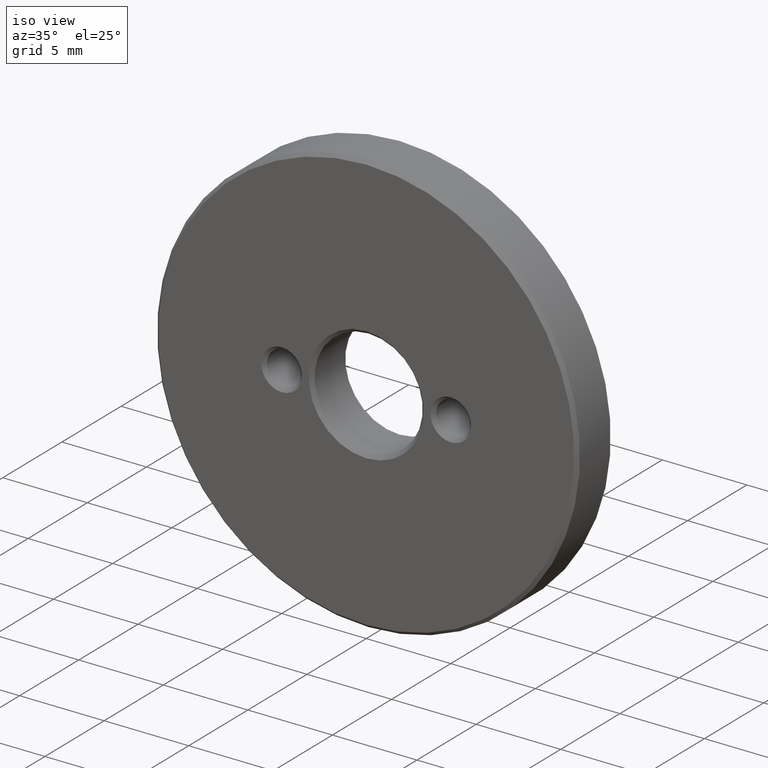
[diagram: clean part render]
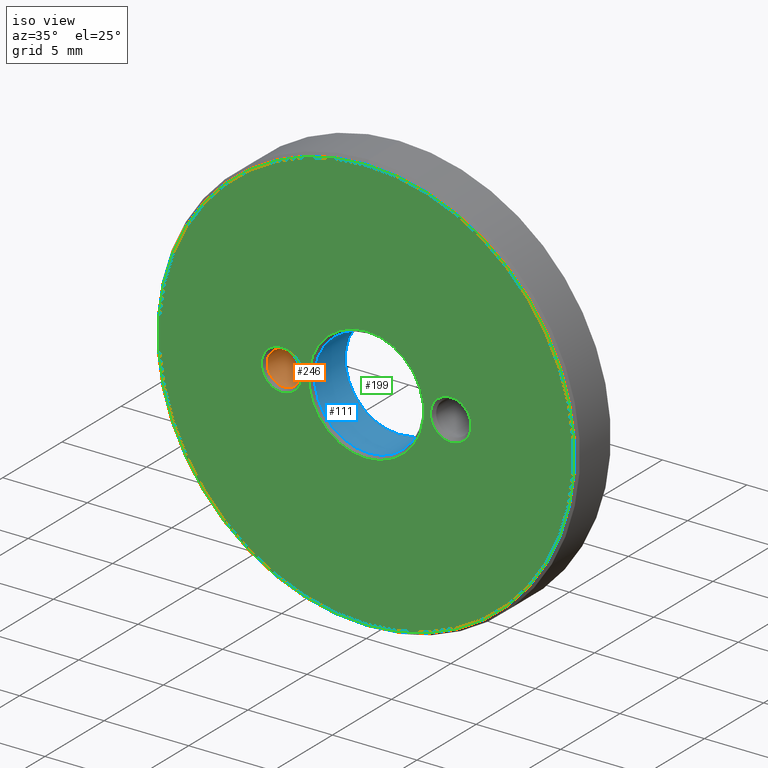
[diagram: same view with three faces highlighted in distinct colors, each labeled with its STEP entity id]
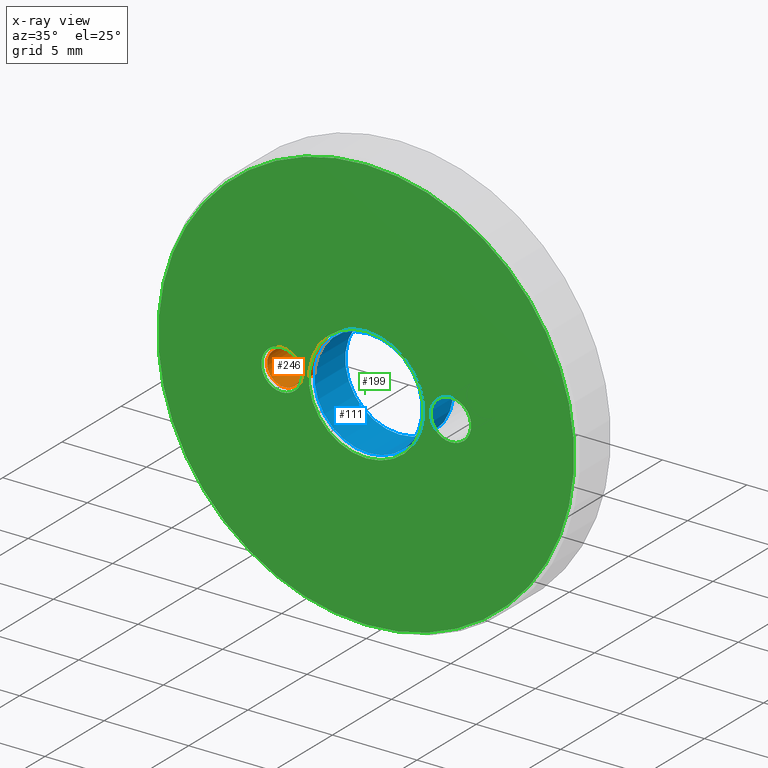
[diagram: x-ray of the same camera — body ghosted, the three highlighted faces saturated]
A machine part, iso view with three faces highlighted in distinct colors.
The next image is the same camera in x-ray (body ghosted, the three faces saturated) — at least one of them is partly hidden behind the body in this view.
Their STEP definitions:

[orange] entity #246 — the highlighted cylindrical surface (bore or boss wall) has radius 1.005 mm, axis along (-0, -1, -0).
#6 = EDGE_CURVE ( 'NONE', #133, #133, #253, .T. ) ;
#20 = DIRECTION ( 'NONE',  ( 0.000000000000000000, 0.000000000000000000, 1.000000000000000000 ) ) ;
#31 = CYLINDRICAL_SURFACE ( 'NONE', #244, 1.004999999999999893 ) ;
#69 = CARTESIAN_POINT ( 'NONE',  ( -5.000000000000000000, 2.799999999999997158, 1.004999999999999893 ) ) ;
#75 = DIRECTION ( 'NONE',  ( 0.000000000000000000, 0.000000000000000000, 1.000000000000000000 ) ) ;
#78 = EDGE_LOOP ( 'NONE', ( #356 ) ) ;
#86 = EDGE_LOOP ( 'NONE', ( #324 ) ) ;
#131 = CARTESIAN_POINT ( 'NONE',  ( -5.000000000000000000, 2.799999999999997158, 0.000000000000000000 ) ) ;
#133 = VERTEX_POINT ( 'NONE', #258 ) ;
#151 = FACE_OUTER_BOUND ( 'NONE', #78, .T. ) ;
#154 = FACE_OUTER_BOUND ( 'NONE', #86, .T. ) ;
#156 = CARTESIAN_POINT ( 'NONE',  ( -5.000000000000000000, 3.000000000000000000, 0.000000000000000000 ) ) ;
#160 = DIRECTION ( 'NONE',  ( 0.000000000000000000, 1.000000000000000000, 0.000000000000000000 ) ) ;
#175 = CARTESIAN_POINT ( 'NONE',  ( -5.000000000000000000, 0.1999999999999944600, 0.000000000000000000 ) ) ;
#244 = AXIS2_PLACEMENT_3D ( 'NONE', #156, #245, #369 ) ;
#245 = DIRECTION ( 'NONE',  ( -0.000000000000000000, -1.000000000000000000, -0.000000000000000000 ) ) ;
#246 = ADVANCED_FACE ( 'NONE', ( #151, #154 ), #31, .F. ) ;
#253 = CIRCLE ( 'NONE', #305, 1.004999999999999893 ) ;
#258 = CARTESIAN_POINT ( 'NONE',  ( -5.000000000000000000, 0.1999999999999944600, 1.004999999999999893 ) ) ;
#297 = DIRECTION ( 'NONE',  ( -0.000000000000000000, -1.000000000000000000, -0.000000000000000000 ) ) ;
#305 = AXIS2_PLACEMENT_3D ( 'NONE', #175, #297, #20 ) ;
#315 = VERTEX_POINT ( 'NONE', #69 ) ;
#320 = EDGE_CURVE ( 'NONE', #315, #315, #372, .T. ) ;
#324 = ORIENTED_EDGE ( 'NONE', *, *, #320, .T. ) ;
#356 = ORIENTED_EDGE ( 'NONE', *, *, #6, .T. ) ;
#369 = DIRECTION ( 'NONE',  ( 0.000000000000000000, 0.000000000000000000, -1.000000000000000000 ) ) ;
#372 = CIRCLE ( 'NONE', #377, 1.004999999999999893 ) ;
#377 = AXIS2_PLACEMENT_3D ( 'NONE', #131, #160, #75 ) ;

[blue] entity #111 — the highlighted cylindrical surface (bore or boss wall) has radius 3.2 mm, axis along (-0, -1, -0).
#13 = CARTESIAN_POINT ( 'NONE',  ( 0.000000000000000000, 0.1999999999999931555, 3.200000000000000178 ) ) ;
#35 = CIRCLE ( 'NONE', #273, 3.200000000000000178 ) ;
#40 = VERTEX_POINT ( 'NONE', #13 ) ;
#58 = ORIENTED_EDGE ( 'NONE', *, *, #354, .T. ) ;
#60 = DIRECTION ( 'NONE',  ( 0.000000000000000000, 1.000000000000000000, 0.000000000000000000 ) ) ;
#91 = FACE_OUTER_BOUND ( 'NONE', #272, .T. ) ;
#93 = CYLINDRICAL_SURFACE ( 'NONE', #365, 3.200000000000000178 ) ;
#111 = ADVANCED_FACE ( 'NONE', ( #91, #126 ), #93, .F. ) ;
#116 = ORIENTED_EDGE ( 'NONE', *, *, #127, .T. ) ;
#126 = FACE_OUTER_BOUND ( 'NONE', #267, .T. ) ;
#127 = EDGE_CURVE ( 'NONE', #192, #192, #35, .T. ) ;
#177 = AXIS2_PLACEMENT_3D ( 'NONE', #284, #226, #351 ) ;
#185 = DIRECTION ( 'NONE',  ( 0.000000000000000000, 0.000000000000000000, -1.000000000000000000 ) ) ;
#192 = VERTEX_POINT ( 'NONE', #355 ) ;
#194 = CIRCLE ( 'NONE', #177, 3.200000000000000178 ) ;
#219 = DIRECTION ( 'NONE',  ( -0.000000000000000000, -1.000000000000000000, -0.000000000000000000 ) ) ;
#220 = CARTESIAN_POINT ( 'NONE',  ( 0.000000000000000000, 3.000000000000000000, 0.000000000000000000 ) ) ;
#226 = DIRECTION ( 'NONE',  ( -0.000000000000000000, -1.000000000000000000, -0.000000000000000000 ) ) ;
#248 = CARTESIAN_POINT ( 'NONE',  ( 0.000000000000000000, 2.800000000000003819, 0.000000000000000000 ) ) ;
#267 = EDGE_LOOP ( 'NONE', ( #116 ) ) ;
#272 = EDGE_LOOP ( 'NONE', ( #58 ) ) ;
#273 = AXIS2_PLACEMENT_3D ( 'NONE', #248, #60, #373 ) ;
#284 = CARTESIAN_POINT ( 'NONE',  ( 0.000000000000000000, 0.1999999999999931555, 0.000000000000000000 ) ) ;
#351 = DIRECTION ( 'NONE',  ( 0.000000000000000000, 0.000000000000000000, 1.000000000000000000 ) ) ;
#354 = EDGE_CURVE ( 'NONE', #40, #40, #194, .T. ) ;
#355 = CARTESIAN_POINT ( 'NONE',  ( 0.000000000000000000, 2.800000000000003819, 3.200000000000000178 ) ) ;
#365 = AXIS2_PLACEMENT_3D ( 'NONE', #220, #219, #185 ) ;
#373 = DIRECTION ( 'NONE',  ( 0.000000000000000000, 0.000000000000000000, 1.000000000000000000 ) ) ;

[green] entity #199 — the highlighted planar face has unit normal (0, 1, 0).
#3 = EDGE_CURVE ( 'NONE', #378, #378, #266, .T. ) ;
#12 = ORIENTED_EDGE ( 'NONE', *, *, #236, .T. ) ;
#17 = CIRCLE ( 'NONE', #135, 1.204999999999994298 ) ;
#22 = CARTESIAN_POINT ( 'NONE',  ( 0.000000000000000000, 0.000000000000000000, 0.000000000000000000 ) ) ;
#27 = CARTESIAN_POINT ( 'NONE',  ( 0.000000000000000000, 0.000000000000000000, 0.000000000000000000 ) ) ;
#28 = FACE_BOUND ( 'NONE', #364, .T. ) ;
#34 = EDGE_CURVE ( 'NONE', #229, #229, #309, .T. ) ;
#45 = AXIS2_PLACEMENT_3D ( 'NONE', #68, #343, #280 ) ;
#50 = DIRECTION ( 'NONE',  ( -0.000000000000000000, -1.000000000000000000, -0.000000000000000000 ) ) ;
#63 = FACE_BOUND ( 'NONE', #227, .T. ) ;
#66 = AXIS2_PLACEMENT_3D ( 'NONE', #121, #158, #125 ) ;
#68 = CARTESIAN_POINT ( 'NONE',  ( -5.000000000000000000, 0.000000000000000000, 0.000000000000000000 ) ) ;
#79 = CARTESIAN_POINT ( 'NONE',  ( 5.000000000000000000, 0.000000000000000000, 1.204999999999992522 ) ) ;
#96 = FACE_BOUND ( 'NONE', #173, .T. ) ;
#98 = CARTESIAN_POINT ( 'NONE',  ( 0.000000000000000000, 0.000000000000000000, 12.29999999999999893 ) ) ;
#114 = DIRECTION ( 'NONE',  ( 0.000000000000000000, 0.000000000000000000, 1.000000000000000000 ) ) ;
#121 = CARTESIAN_POINT ( 'NONE',  ( 0.000000000000000000, 0.000000000000000000, 0.000000000000000000 ) ) ;
#123 = FACE_OUTER_BOUND ( 'NONE', #230, .T. ) ;
#125 = DIRECTION ( 'NONE',  ( 0.000000000000000000, -0.000000000000000000, 1.000000000000000000 ) ) ;
#135 = AXIS2_PLACEMENT_3D ( 'NONE', #375, #339, #217 ) ;
#147 = ORIENTED_EDGE ( 'NONE', *, *, #3, .T. ) ;
#158 = DIRECTION ( 'NONE',  ( 0.000000000000000000, 1.000000000000000000, 0.000000000000000000 ) ) ;
#173 = EDGE_LOOP ( 'NONE', ( #200 ) ) ;
#186 = EDGE_CURVE ( 'NONE', #193, #193, #17, .T. ) ;
#193 = VERTEX_POINT ( 'NONE', #79 ) ;
#199 = ADVANCED_FACE ( 'NONE', ( #63, #96, #28, #123 ), #308, .F. ) ;
#200 = ORIENTED_EDGE ( 'NONE', *, *, #186, .T. ) ;
#217 = DIRECTION ( 'NONE',  ( 0.000000000000000000, 0.000000000000000000, 1.000000000000000000 ) ) ;
#221 = CIRCLE ( 'NONE', #45, 1.204999999999994298 ) ;
#223 = VERTEX_POINT ( 'NONE', #316 ) ;
#227 = EDGE_LOOP ( 'NONE', ( #12 ) ) ;
#229 = VERTEX_POINT ( 'NONE', #260 ) ;
#230 = EDGE_LOOP ( 'NONE', ( #147 ) ) ;
#236 = EDGE_CURVE ( 'NONE', #223, #223, #221, .T. ) ;
#260 = CARTESIAN_POINT ( 'NONE',  ( 0.000000000000000000, 0.000000000000000000, 3.399999999999993250 ) ) ;
#266 = CIRCLE ( 'NONE', #319, 12.29999999999999893 ) ;
#280 = DIRECTION ( 'NONE',  ( 0.000000000000000000, 0.000000000000000000, 1.000000000000000000 ) ) ;
#294 = DIRECTION ( 'NONE',  ( 0.000000000000000000, 0.000000000000000000, 1.000000000000000000 ) ) ;
#295 = AXIS2_PLACEMENT_3D ( 'NONE', #22, #393, #114 ) ;
#308 = PLANE ( 'NONE',  #66 ) ;
#309 = CIRCLE ( 'NONE', #295, 3.399999999999993250 ) ;
#316 = CARTESIAN_POINT ( 'NONE',  ( -5.000000000000000000, 0.000000000000000000, 1.204999999999994298 ) ) ;
#319 = AXIS2_PLACEMENT_3D ( 'NONE', #27, #50, #294 ) ;
#339 = DIRECTION ( 'NONE',  ( 0.000000000000000000, 1.000000000000000000, 0.000000000000000000 ) ) ;
#343 = DIRECTION ( 'NONE',  ( 0.000000000000000000, 1.000000000000000000, 0.000000000000000000 ) ) ;
#362 = ORIENTED_EDGE ( 'NONE', *, *, #34, .T. ) ;
#364 = EDGE_LOOP ( 'NONE', ( #362 ) ) ;
#375 = CARTESIAN_POINT ( 'NONE',  ( 5.000000000000000000, 0.000000000000000000, -1.836970198721029194E-15 ) ) ;
#378 = VERTEX_POINT ( 'NONE', #98 ) ;
#393 = DIRECTION ( 'NONE',  ( 0.000000000000000000, 1.000000000000000000, 0.000000000000000000 ) ) ;